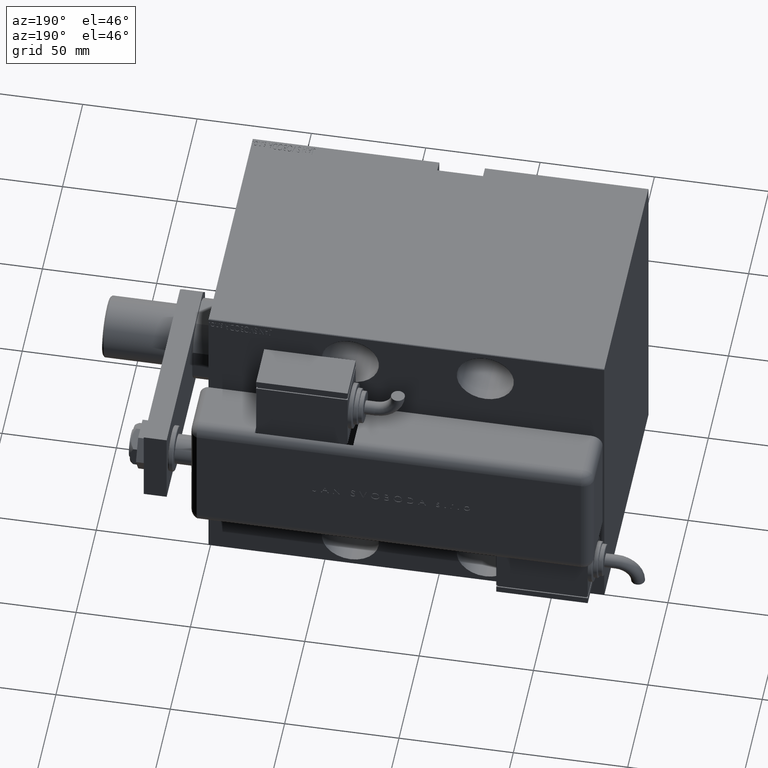
[diagram: clean part render]
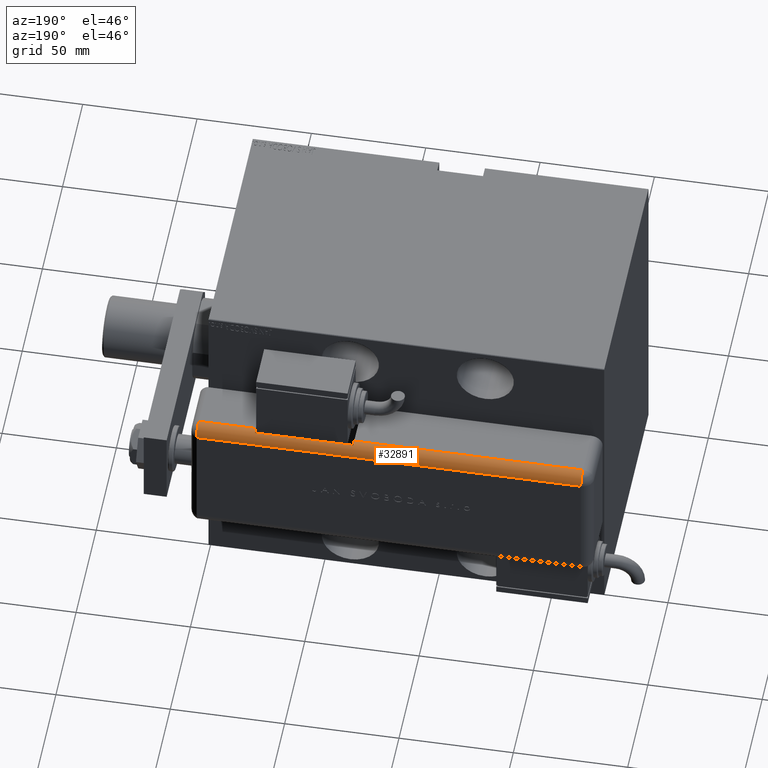
[diagram: same view with one face highlighted and labeled with its STEP entity id]
A machine part, auxiliary view. The second image highlights one B-rep face of the part: STEP entity #32891.
In plain terms, the highlighted cylindrical surface (edge-blend (fillet) strip) has radius 5 mm, axis along (-1, -0, -0).
Its self-contained STEP definition (entity closure, byte-faithful):
#4237 = DIRECTION ( 'NONE',  ( 0.000000000000000000, 0.000000000000000000, -1.000000000000000000 ) ) ;
#4769 = VECTOR ( 'NONE', #51621, 1000.000000000000000 ) ;
#5806 = CARTESIAN_POINT ( 'NONE',  ( -28.99999999999999645, 20.79999999999998295, 173.0000000000000000 ) ) ;
#6432 = DIRECTION ( 'NONE',  ( -1.000000000000000000, 4.163336342344336238E-15, 0.000000000000000000 ) ) ;
#6977 = CARTESIAN_POINT ( 'NONE',  ( -28.48998886412872267, 22.99999999999998934, 148.0000000000000000 ) ) ;
#7658 = VERTEX_POINT ( 'NONE', #6977 ) ;
#8265 = EDGE_CURVE ( 'NONE', #14288, #51443, #46586, .T. ) ;
#8440 = AXIS2_PLACEMENT_3D ( 'NONE', #16874, #50232, #58755 ) ;
#8445 = CARTESIAN_POINT ( 'NONE',  ( -28.99999999999999645, 20.79999999999998295, 5.000000000000004441 ) ) ;
#10335 = VERTEX_POINT ( 'NONE', #59728 ) ;
#12749 = CIRCLE ( 'NONE', #52440, 5.000000000000000888 ) ;
#14288 = VERTEX_POINT ( 'NONE', #53412 ) ;
#15318 = DIRECTION ( 'NONE',  ( -0.000000000000000000, -0.000000000000000000, 1.000000000000000000 ) ) ;
#16094 = CARTESIAN_POINT ( 'NONE',  ( -28.48998886412872267, 22.99999999999998934, 105.0000000000000000 ) ) ;
#16652 = EDGE_CURVE ( 'NONE', #7658, #21851, #56078, .T. ) ;
#16874 = CARTESIAN_POINT ( 'NONE',  ( -23.99999999999999645, 20.79999999999998295, 173.0000000000000000 ) ) ;
#19157 = LINE ( 'NONE', #5806, #4769 ) ;
#19172 = CARTESIAN_POINT ( 'NONE',  ( -23.99999999999999645, 20.79999999999998295, 105.0000000000000000 ) ) ;
#20378 = DIRECTION ( 'NONE',  ( -1.000000000000000000, 0.000000000000000000, 0.000000000000000000 ) ) ;
#20852 = AXIS2_PLACEMENT_3D ( 'NONE', #47472, #43833, #38387 ) ;
#21447 = LINE ( 'NONE', #39969, #26887 ) ;
#21851 = VERTEX_POINT ( 'NONE', #16094 ) ;
#24430 = VECTOR ( 'NONE', #4237, 1000.000000000000000 ) ;
#26887 = VECTOR ( 'NONE', #49054, 1000.000000000000000 ) ;
#27647 = VERTEX_POINT ( 'NONE', #48583 ) ;
#29846 = AXIS2_PLACEMENT_3D ( 'NONE', #19172, #37689, #6432 ) ;
#30271 = DIRECTION ( 'NONE',  ( 0.000000000000000000, -0.000000000000000000, -1.000000000000000000 ) ) ;
#30883 = DIRECTION ( 'NONE',  ( 1.000000000000000000, 0.000000000000000000, 0.000000000000000000 ) ) ;
#31757 = VERTEX_POINT ( 'NONE', #8445 ) ;
#32891 = ADVANCED_FACE ( 'NONE', ( #58450 ), #45391, .T. ) ;
#34367 = ORIENTED_EDGE ( 'NONE', *, *, #36988, .F. ) ;
#35068 = VERTEX_POINT ( 'NONE', #37995 ) ;
#36988 = EDGE_CURVE ( 'NONE', #51443, #27647, #49914, .T. ) ;
#37689 = DIRECTION ( 'NONE',  ( -0.000000000000000000, -0.000000000000000000, 1.000000000000000000 ) ) ;
#37995 = CARTESIAN_POINT ( 'NONE',  ( -28.99999999999999645, 20.79999999999998295, 148.0000000000000000 ) ) ;
#38387 = DIRECTION ( 'NONE',  ( -1.000000000000000000, 0.000000000000000000, 0.000000000000000000 ) ) ;
#38750 = EDGE_LOOP ( 'NONE', ( #40925, #42978, #57953, #41766, #34367, #43018, #42952, #55124 ) ) ;
#39969 = CARTESIAN_POINT ( 'NONE',  ( -28.99999999999999645, 20.79999999999998295, 173.0000000000000000 ) ) ;
#40925 = ORIENTED_EDGE ( 'NONE', *, *, #48399, .F. ) ;
#41766 = ORIENTED_EDGE ( 'NONE', *, *, #51120, .F. ) ;
#42952 = ORIENTED_EDGE ( 'NONE', *, *, #59150, .T. ) ;
#42978 = ORIENTED_EDGE ( 'NONE', *, *, #16652, .F. ) ;
#43018 = ORIENTED_EDGE ( 'NONE', *, *, #8265, .F. ) ;
#43833 = DIRECTION ( 'NONE',  ( -0.000000000000000000, -0.000000000000000000, 1.000000000000000000 ) ) ;
#45391 = CYLINDRICAL_SURFACE ( 'NONE', #8440, 5.000000000000000888 ) ;
#45566 = EDGE_CURVE ( 'NONE', #10335, #31757, #21447, .T. ) ;
#46092 = CARTESIAN_POINT ( 'NONE',  ( -28.48998886412872267, 22.99999999999998934, 173.0000000000000000 ) ) ;
#46113 = CARTESIAN_POINT ( 'NONE',  ( -23.99999999999999645, 25.79999999999998295, 173.0000000000000000 ) ) ;
#46586 = LINE ( 'NONE', #47484, #51361 ) ;
#47472 = CARTESIAN_POINT ( 'NONE',  ( -23.99999999999999645, 20.79999999999998295, 173.0000000000000000 ) ) ;
#47484 = CARTESIAN_POINT ( 'NONE',  ( -23.99999999999999645, 25.79999999999998295, 173.0000000000000000 ) ) ;
#48399 = EDGE_CURVE ( 'NONE', #21851, #10335, #59916, .T. ) ;
#48491 = AXIS2_PLACEMENT_3D ( 'NONE', #53448, #57686, #20378 ) ;
#48583 = CARTESIAN_POINT ( 'NONE',  ( -28.99999999999999645, 20.79999999999998295, 173.0000000000000000 ) ) ;
#49054 = DIRECTION ( 'NONE',  ( 0.000000000000000000, 0.000000000000000000, -1.000000000000000000 ) ) ;
#49914 = CIRCLE ( 'NONE', #20852, 5.000000000000000888 ) ;
#50232 = DIRECTION ( 'NONE',  ( 0.000000000000000000, 0.000000000000000000, -1.000000000000000000 ) ) ;
#51120 = EDGE_CURVE ( 'NONE', #27647, #35068, #19157, .T. ) ;
#51361 = VECTOR ( 'NONE', #15318, 1000.000000000000000 ) ;
#51443 = VERTEX_POINT ( 'NONE', #46113 ) ;
#51621 = DIRECTION ( 'NONE',  ( 0.000000000000000000, 0.000000000000000000, -1.000000000000000000 ) ) ;
#52440 = AXIS2_PLACEMENT_3D ( 'NONE', #59081, #30271, #30883 ) ;
#53412 = CARTESIAN_POINT ( 'NONE',  ( -23.99999999999999645, 25.79999999999998295, 5.000000000000004441 ) ) ;
#53448 = CARTESIAN_POINT ( 'NONE',  ( -23.99999999999999645, 20.79999999999998295, 5.000000000000004441 ) ) ;
#55124 = ORIENTED_EDGE ( 'NONE', *, *, #45566, .F. ) ;
#56078 = LINE ( 'NONE', #46092, #24430 ) ;
#57686 = DIRECTION ( 'NONE',  ( -0.000000000000000000, -0.000000000000000000, 1.000000000000000000 ) ) ;
#57953 = ORIENTED_EDGE ( 'NONE', *, *, #59695, .F. ) ;
#58203 = CIRCLE ( 'NONE', #48491, 5.000000000000000888 ) ;
#58450 = FACE_OUTER_BOUND ( 'NONE', #38750, .T. ) ;
#58755 = DIRECTION ( 'NONE',  ( -1.000000000000000000, 0.000000000000000000, 0.000000000000000000 ) ) ;
#59081 = CARTESIAN_POINT ( 'NONE',  ( -23.99999999999999645, 20.79999999999998295, 148.0000000000000000 ) ) ;
#59150 = EDGE_CURVE ( 'NONE', #14288, #31757, #58203, .T. ) ;
#59695 = EDGE_CURVE ( 'NONE', #35068, #7658, #12749, .T. ) ;
#59728 = CARTESIAN_POINT ( 'NONE',  ( -28.99999999999999645, 20.79999999999998295, 105.0000000000000000 ) ) ;
#59916 = CIRCLE ( 'NONE', #29846, 5.000000000000000888 ) ;